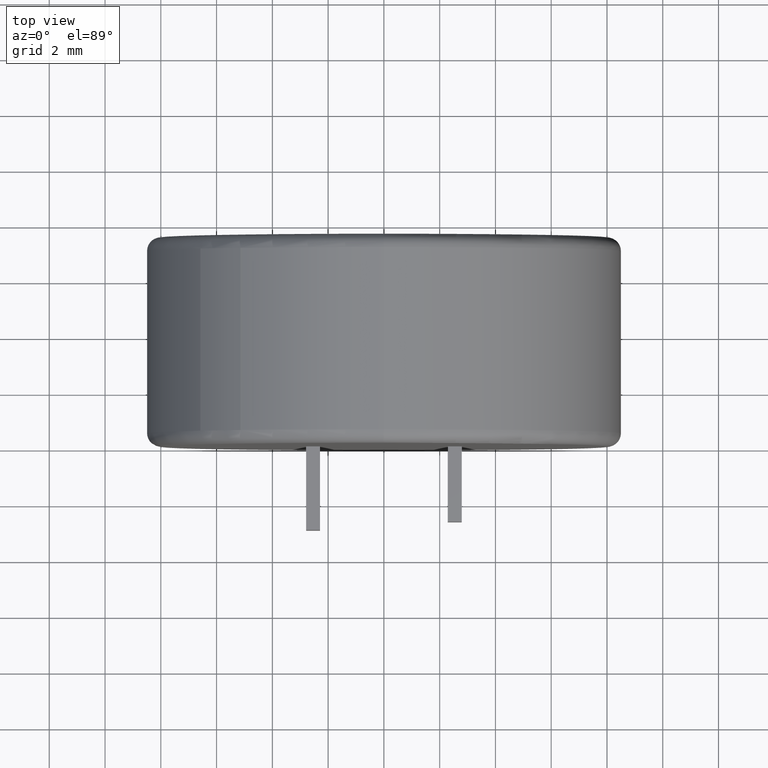
[diagram: clean part render]
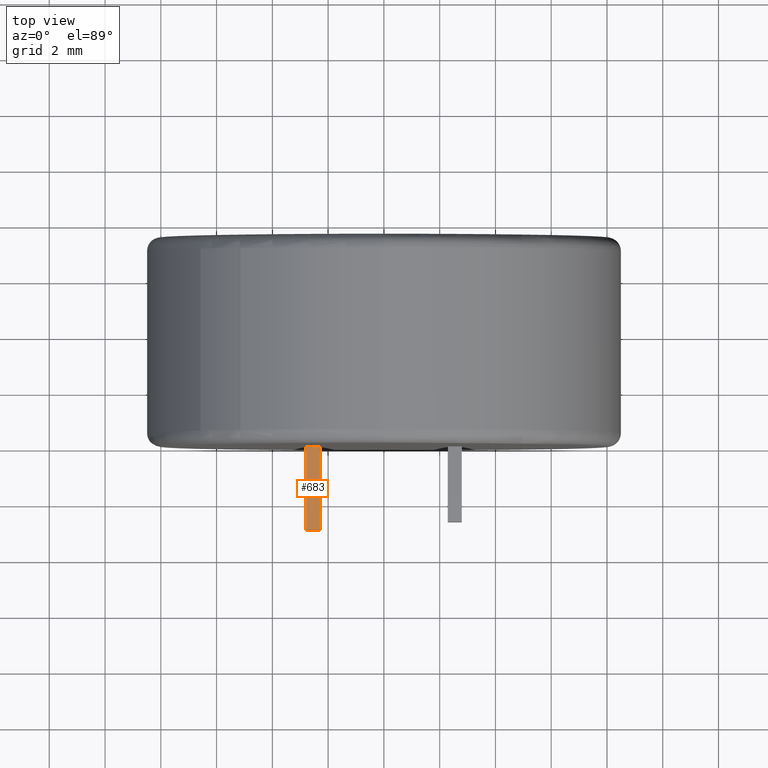
[diagram: same view with one face highlighted and labeled with its STEP entity id]
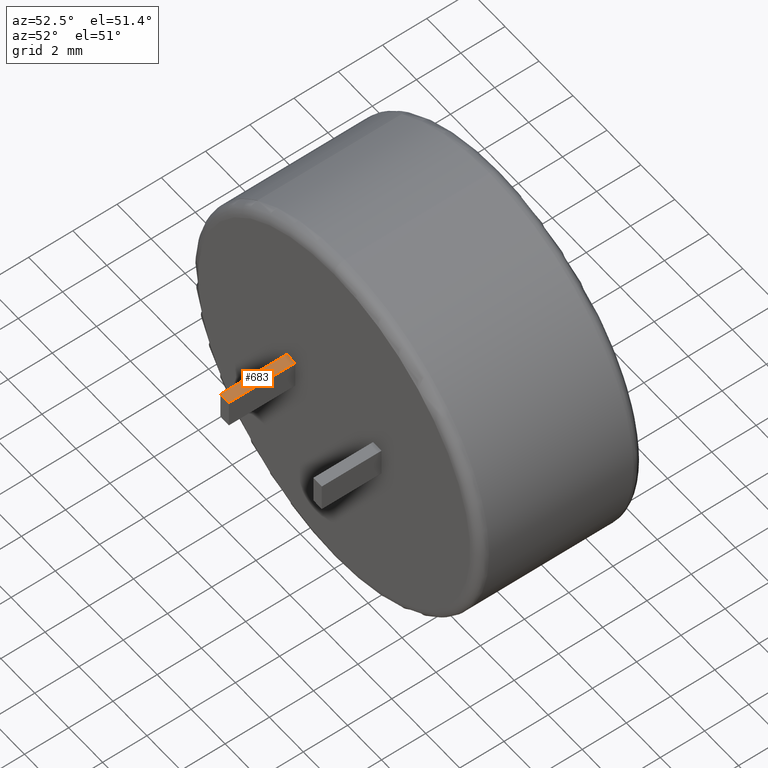
[diagram: same view with one face highlighted and labeled with its STEP entity id]
A machine part, top view. The second image highlights one B-rep face of the part: STEP entity #683.
A second angle (auxiliary view) of the same face is appended — the face is thin or edge-on in the first view.
In plain terms, the highlighted planar face has unit normal (-0, 0, 1).
Its self-contained STEP definition (entity closure, byte-faithful):
#73 = CARTESIAN_POINT ( 'NONE',  ( -2.289999999999999100, 0.0000000000000000000, 0.6500000000000053500 ) ) ;
#111 = DIRECTION ( 'NONE',  ( -0.0000000000000000000, 0.0000000000000000000, 1.000000000000000000 ) ) ;
#149 = VERTEX_POINT ( 'NONE', #1785 ) ;
#181 = VERTEX_POINT ( 'NONE', #73 ) ;
#208 = LINE ( 'NONE', #317, #1510 ) ;
#317 = CARTESIAN_POINT ( 'NONE',  ( -2.789999999999999100, 0.0000000000000000000, 0.6500000000000053500 ) ) ;
#344 = CARTESIAN_POINT ( 'NONE',  ( -2.789999999999999100, -3.000000000000000000, 0.6500000000000053500 ) ) ;
#459 = ORIENTED_EDGE ( 'NONE', *, *, #1413, .F. ) ;
#533 = VERTEX_POINT ( 'NONE', #1804 ) ;
#556 = EDGE_LOOP ( 'NONE', ( #459, #1057, #1825, #2372 ) ) ;
#578 = EDGE_CURVE ( 'NONE', #149, #657, #1395, .T. ) ;
#621 = VECTOR ( 'NONE', #1368, 1000.000000000000000 ) ;
#657 = VERTEX_POINT ( 'NONE', #1430 ) ;
#683 = ADVANCED_FACE ( 'NONE', ( #1249 ), #1405, .T. ) ;
#908 = DIRECTION ( 'NONE',  ( 1.000000000000000000, 0.0000000000000000000, 0.0000000000000000000 ) ) ;
#930 = DIRECTION ( 'NONE',  ( 1.000000000000000000, 0.0000000000000000000, 0.0000000000000000000 ) ) ;
#1057 = ORIENTED_EDGE ( 'NONE', *, *, #578, .F. ) ;
#1146 = AXIS2_PLACEMENT_3D ( 'NONE', #344, #111, #2235 ) ;
#1178 = EDGE_CURVE ( 'NONE', #149, #533, #2523, .T. ) ;
#1213 = DIRECTION ( 'NONE',  ( -0.0000000000000000000, 1.000000000000000000, -0.0000000000000000000 ) ) ;
#1249 = FACE_OUTER_BOUND ( 'NONE', #556, .T. ) ;
#1342 = VECTOR ( 'NONE', #1213, 1000.000000000000000 ) ;
#1368 = DIRECTION ( 'NONE',  ( -0.0000000000000000000, 1.000000000000000000, -0.0000000000000000000 ) ) ;
#1395 = LINE ( 'NONE', #2424, #621 ) ;
#1405 = PLANE ( 'NONE',  #1146 ) ;
#1413 = EDGE_CURVE ( 'NONE', #657, #181, #208, .T. ) ;
#1430 = CARTESIAN_POINT ( 'NONE',  ( -2.789999999999999100, 0.0000000000000000000, 0.6500000000000053500 ) ) ;
#1485 = EDGE_CURVE ( 'NONE', #533, #181, #1901, .T. ) ;
#1510 = VECTOR ( 'NONE', #930, 1000.000000000000000 ) ;
#1701 = VECTOR ( 'NONE', #908, 1000.000000000000000 ) ;
#1785 = CARTESIAN_POINT ( 'NONE',  ( -2.789999999999999100, -3.000000000000000000, 0.6500000000000053500 ) ) ;
#1804 = CARTESIAN_POINT ( 'NONE',  ( -2.289999999999999100, -3.000000000000000000, 0.6500000000000053500 ) ) ;
#1825 = ORIENTED_EDGE ( 'NONE', *, *, #1178, .T. ) ;
#1901 = LINE ( 'NONE', #2267, #1342 ) ;
#2123 = CARTESIAN_POINT ( 'NONE',  ( -2.789999999999999100, -3.000000000000000000, 0.6500000000000053500 ) ) ;
#2235 = DIRECTION ( 'NONE',  ( 1.000000000000000000, 0.0000000000000000000, 0.0000000000000000000 ) ) ;
#2267 = CARTESIAN_POINT ( 'NONE',  ( -2.289999999999999100, -3.000000000000000000, 0.6500000000000053500 ) ) ;
#2372 = ORIENTED_EDGE ( 'NONE', *, *, #1485, .T. ) ;
#2424 = CARTESIAN_POINT ( 'NONE',  ( -2.789999999999999100, -3.000000000000000000, 0.6500000000000053500 ) ) ;
#2523 = LINE ( 'NONE', #2123, #1701 ) ;